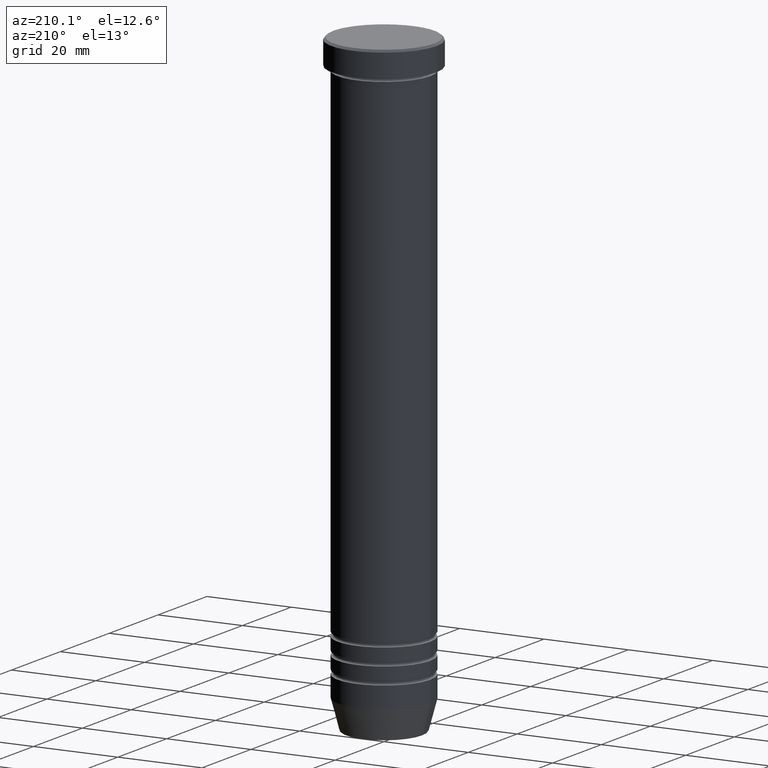
[diagram: clean part render]
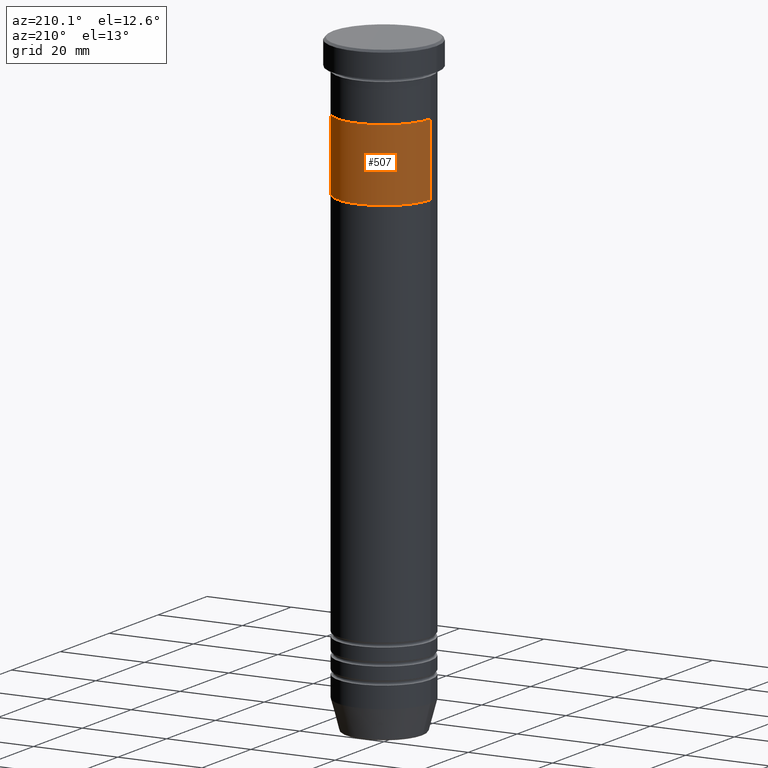
[diagram: same view with one face highlighted and labeled with its STEP entity id]
A machine part, auxiliary view. The second image highlights one B-rep face of the part: STEP entity #507.
In plain terms, the highlighted cylindrical surface (partial cylindrical patch) has radius 11 mm, axis along (-0, -0, 1).
Its self-contained STEP definition (entity closure, byte-faithful):
#3 = VERTEX_POINT ( 'NONE', #798 ) ;
#29 = CARTESIAN_POINT ( 'NONE',  ( 11.00000000000000000, 0.000000000000000000, -33.00000000000000000 ) ) ;
#82 = ORIENTED_EDGE ( 'NONE', *, *, #1018, .F. ) ;
#90 = ORIENTED_EDGE ( 'NONE', *, *, #646, .F. ) ;
#119 = DIRECTION ( 'NONE',  ( -1.000000000000000000, 0.000000000000000000, 0.000000000000000000 ) ) ;
#127 = CARTESIAN_POINT ( 'NONE',  ( 0.000000000000000000, 0.000000000000000000, -33.00000000000000000 ) ) ;
#141 = DIRECTION ( 'NONE',  ( 0.000000000000000000, 0.000000000000000000, -1.000000000000000000 ) ) ;
#162 = ORIENTED_EDGE ( 'NONE', *, *, #994, .T. ) ;
#168 = CARTESIAN_POINT ( 'NONE',  ( -11.00000000000000000, 1.347111479062088405E-15, -16.00000000000000000 ) ) ;
#180 = CARTESIAN_POINT ( 'NONE',  ( 11.00000000000000000, 0.000000000000000000, -16.00000000000000000 ) ) ;
#183 = VERTEX_POINT ( 'NONE', #940 ) ;
#185 = DIRECTION ( 'NONE',  ( 1.000000000000000000, 0.000000000000000000, 0.000000000000000000 ) ) ;
#206 = FACE_OUTER_BOUND ( 'NONE', #861, .T. ) ;
#268 = CARTESIAN_POINT ( 'NONE',  ( -11.00000000000000000, 1.347111479062088405E-15, -33.00000000000000000 ) ) ;
#371 = CARTESIAN_POINT ( 'NONE',  ( 0.000000000000000000, 0.000000000000000000, -33.00000000000000000 ) ) ;
#391 = DIRECTION ( 'NONE',  ( -1.000000000000000000, 0.000000000000000000, 0.000000000000000000 ) ) ;
#414 = EDGE_CURVE ( 'NONE', #3, #463, #599, .T. ) ;
#434 = VERTEX_POINT ( 'NONE', #180 ) ;
#463 = VERTEX_POINT ( 'NONE', #168 ) ;
#507 = ADVANCED_FACE ( 'NONE', ( #206 ), #983, .T. ) ;
#531 = DIRECTION ( 'NONE',  ( 0.000000000000000000, 0.000000000000000000, -1.000000000000000000 ) ) ;
#573 = VECTOR ( 'NONE', #619, 1000.000000000000000 ) ;
#599 = LINE ( 'NONE', #268, #573 ) ;
#619 = DIRECTION ( 'NONE',  ( -0.000000000000000000, -0.000000000000000000, 1.000000000000000000 ) ) ;
#641 = DIRECTION ( 'NONE',  ( -0.000000000000000000, -0.000000000000000000, 1.000000000000000000 ) ) ;
#646 = EDGE_CURVE ( 'NONE', #3, #183, #949, .T. ) ;
#687 = AXIS2_PLACEMENT_3D ( 'NONE', #907, #531, #119 ) ;
#798 = CARTESIAN_POINT ( 'NONE',  ( -11.00000000000000000, 1.347111479062088405E-15, -33.00000000000000000 ) ) ;
#861 = EDGE_LOOP ( 'NONE', ( #90, #1065, #162, #82 ) ) ;
#898 = CIRCLE ( 'NONE', #687, 11.00000000000000000 ) ;
#907 = CARTESIAN_POINT ( 'NONE',  ( 0.000000000000000000, 0.000000000000000000, -16.00000000000000000 ) ) ;
#940 = CARTESIAN_POINT ( 'NONE',  ( 11.00000000000000000, 0.000000000000000000, -33.00000000000000000 ) ) ;
#949 = CIRCLE ( 'NONE', #1139, 11.00000000000000000 ) ;
#983 = CYLINDRICAL_SURFACE ( 'NONE', #1137, 11.00000000000000000 ) ;
#991 = VECTOR ( 'NONE', #641, 1000.000000000000000 ) ;
#994 = EDGE_CURVE ( 'NONE', #463, #434, #898, .T. ) ;
#1002 = DIRECTION ( 'NONE',  ( -0.000000000000000000, -0.000000000000000000, 1.000000000000000000 ) ) ;
#1018 = EDGE_CURVE ( 'NONE', #183, #434, #1070, .T. ) ;
#1065 = ORIENTED_EDGE ( 'NONE', *, *, #414, .T. ) ;
#1070 = LINE ( 'NONE', #29, #991 ) ;
#1137 = AXIS2_PLACEMENT_3D ( 'NONE', #371, #1002, #185 ) ;
#1139 = AXIS2_PLACEMENT_3D ( 'NONE', #127, #141, #391 ) ;